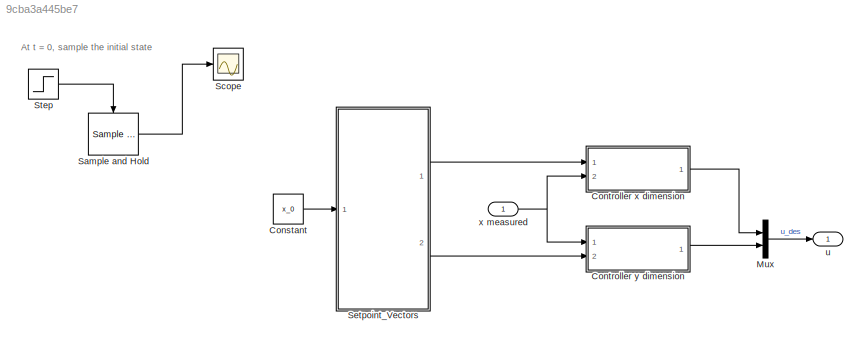
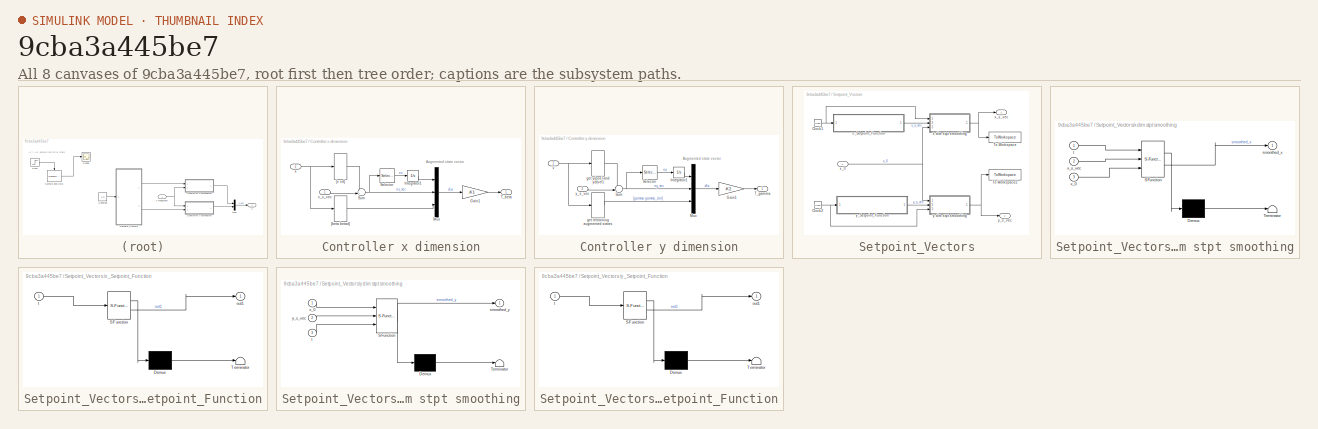
[diagram: thumbnail index - all 8 canvases of the model, root first then tree order]
MODEL slx_9cba3a445be7
KIND model
CONFIG AbsTol = auto
CONFIG EnableMultiTasking = off
CONFIG FixedStep = auto
CONFIG MaxStep = auto
CONFIG MinStep = auto
CONFIG RelTol = 1e-3
CONFIG SampleTimeConstraint = Unconstrained
CONFIG SolverName = VariableStepAuto
CONFIG StartTime = 0.0
CONFIG StopTime = 10.0
BLOCK [Constant] Constant
  Value = x_0
BLOCK [SubSystem] Controller x dimension
  Ports = [2, 1]
  RequestExecContextInheritance = off
BLOCK [Gain] Controller x dimension/Gain1
  Gain = -K1
  Multiplication = Matrix(K*u)
BLOCK [Integrator] Controller x dimension/Integrator1
  Ports = [1, 1]
BLOCK [Mux] Controller x dimension/Mux
  DisplayOption = bar
  Inputs = 3
  Ports = [3, 1]
BLOCK [Selector] Controller x dimension/Selector
  IndexOptions = Index vector (dialog)
  Indices = [1 ]
  InputPortWidth = 2
  OutputSizes = 1
  Ports = [1, 1]
BLOCK [Sum] Controller x dimension/Sum
  Inputs = -+|
  Ports = [2, 1]
BLOCK [Outport] Controller x dimension/T_beta
BLOCK [Selector] Controller x dimension/[beta betad]
  IndexOptions = Index vector (dialog)
  Indices = [3,4]
  InputPortWidth = 8
  OutputSizes = 1
  Ports = [1, 1]
BLOCK [Selector] Controller x dimension/[x xd]
  IndexOptions = Index vector (dialog)
  Indices = [1 2]
  InputPortWidth = 8
  OutputSizes = 1
  Ports = [1, 1]
BLOCK [Inport] Controller x dimension/x
  Port = 2
BLOCK [Inport] Controller x dimension/x_s_vec
BLOCK [SubSystem] Controller y dimension
  NameLocation = top
  Ports = [2, 1]
  RequestExecContextInheritance = off
BLOCK [Gain] Controller y dimension/Gain1
  Gain = -K2
  Multiplication = Matrix(K*u)
BLOCK [Integrator] Controller y dimension/Integrator1
  Ports = [1, 1]
BLOCK [Mux] Controller y dimension/Mux
  DisplayOption = bar
  Inputs = 3
  Ports = [3, 1]
BLOCK [Selector] Controller y dimension/Selector
  IndexOptions = Index vector (dialog)
  Indices = [1 ]
  InputPortWidth = 2
  OutputSizes = 1
  Ports = [1, 1]
BLOCK [Sum] Controller y dimension/Sum
  Inputs = -+|
  Ports = [2, 1]
BLOCK [Outport] Controller y dimension/T_gamma
BLOCK [Selector] Controller y dimension/get remaining augmented states
  IndexOptions = Index vector (dialog)
  Indices = [7 8]
  InputPortWidth = 8
  OutputSizes = 1
  Ports = [1, 1]
BLOCK [Selector] Controller y dimension/get y(pos) and yd(vel)
  IndexOptions = Index vector (dialog)
  Indices = [5 6]
  InputPortWidth = 8
  OutputSizes = 1
  Ports = [1, 1]
BLOCK [Inport] Controller y dimension/x
BLOCK [Inport] Controller y dimension/y_s_vec
  Port = 2
BLOCK [Mux] Mux
  DisplayOption = bar
  Inputs = 2
  Ports = [2, 1]
BLOCK [Reference] Sample and Hold  REF=dspsigops/Sample
and Hold
  Commented = on
  Ports = [1, 1, 0, 1]
  SourceBlock = dspsigops/Sample\nand Hold
  SourceProductBaseCode = DS
  SourceType = Sample and Hold
BLOCK [Scope] Scope
  Floating = off
  NumInputPorts = 1
  Ports = [1]
  ScopeSpecificationString = Simulink.scopes.TimeScopeBlockCfg('CurrentConfiguration', extmgr.ConfigurationSet(extmgr.Configuration('Core','General UI',true),extmgr.Configuration('Core','Source UI',true),extmgr.Configuration('Sources','WiredSimulink',true),extmgr.Configuration('Visuals','Time Domain',true,'SerializedDisplays',{struct('MinYLimReal','-1.00000','MaxYLimReal','1.00000','YLabelReal','','MinYLimMag','0.00000','MaxY...<+1395ch>
BLOCK [SubSystem] Setpoint_Vectors
  Ports = [1, 2]
  RequestExecContextInheritance = off
BLOCK [Clock] Setpoint_Vectors/Clock1
BLOCK [Clock] Setpoint_Vectors/Clock2
BLOCK [ToWorkspace] Setpoint_Vectors/To Workspace
  FixptAsFi = on
  MaxDataPoints = inf
  Ports = [1]
  SampleTime = -1
  VariableName = x_s_vec
BLOCK [ToWorkspace] Setpoint_Vectors/To Workspace2
  FixptAsFi = on
  MaxDataPoints = inf
  Ports = [1]
  SampleTime = -1
  VariableName = y_s_vec
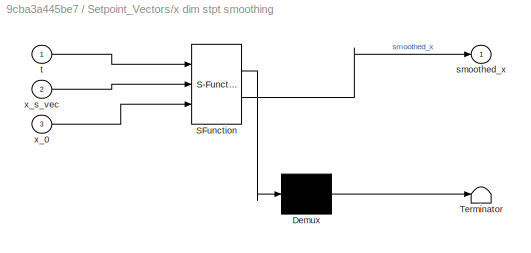
BLOCK [SubSystem] Setpoint_Vectors/x dim stpt smoothing
  ErrorFcn = Stateflow.Translate.translate
  PermitHierarchicalResolution = ExplicitOnly
  Ports = [3, 1]
  RequestExecContextInheritance = off
  SFBlockType = MATLAB Function
  TreatAsAtomicUnit = on
BLOCK [Demux] Setpoint_Vectors/x dim stpt smoothing/ Demux 
  Outputs = 1
  Ports = [1, 1]
BLOCK [S-Function] Setpoint_Vectors/x dim stpt smoothing/ SFunction 
  EnableBusSupport = on
  FunctionName = sf_sfun
  Parameters = Tau
  PortCounts = [3 2]
  Ports = [3, 2]
  SFcnIsStateOwnerBlock = off
  SFunctionDeploymentMode = off
  Tag = Stateflow S-Function 6
BLOCK [Terminator] Setpoint_Vectors/x dim stpt smoothing/ Terminator 
BLOCK [Outport] Setpoint_Vectors/x dim stpt smoothing/smoothed_x
BLOCK [Inport] Setpoint_Vectors/x dim stpt smoothing/t
BLOCK [Inport] Setpoint_Vectors/x dim stpt smoothing/x_0
  Port = 3
BLOCK [Inport] Setpoint_Vectors/x dim stpt smoothing/x_s_vec
  Port = 2
BLOCK [Inport] Setpoint_Vectors/x_0
BLOCK [SubSystem] Setpoint_Vectors/x_Setpoint_Function
  ErrorFcn = Stateflow.Translate.translate
  PermitHierarchicalResolution = ExplicitOnly
  Ports = [1, 1]
  RequestExecContextInheritance = off
  SFBlockType = MATLAB Function
  TreatAsAtomicUnit = on
BLOCK [Demux] Setpoint_Vectors/x_Setpoint_Function/ Demux 
  Outputs = 1
  Ports = [1, 1]
BLOCK [S-Function] Setpoint_Vectors/x_Setpoint_Function/ SFunction 
  EnableBusSupport = on
  FunctionName = sf_sfun
  PortCounts = [1 2]
  Ports = [1, 2]
  SFcnIsStateOwnerBlock = off
  SFunctionDeploymentMode = off
  Tag = Stateflow S-Function 2
BLOCK [Terminator] Setpoint_Vectors/x_Setpoint_Function/ Terminator 
BLOCK [Outport] Setpoint_Vectors/x_Setpoint_Function/out1
BLOCK [Inport] Setpoint_Vectors/x_Setpoint_Function/t
BLOCK [Outport] Setpoint_Vectors/x_s_vec
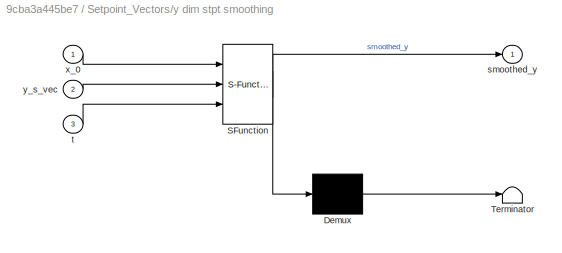
BLOCK [SubSystem] Setpoint_Vectors/y dim stpt smoothing
  ErrorFcn = Stateflow.Translate.translate
  PermitHierarchicalResolution = ExplicitOnly
  Ports = [3, 1]
  RequestExecContextInheritance = off
  SFBlockType = MATLAB Function
  TreatAsAtomicUnit = on
BLOCK [Demux] Setpoint_Vectors/y dim stpt smoothing/ Demux 
  Outputs = 1
  Ports = [1, 1]
BLOCK [S-Function] Setpoint_Vectors/y dim stpt smoothing/ SFunction 
  EnableBusSupport = on
  FunctionName = sf_sfun
  Parameters = Tau
  PortCounts = [3 2]
  Ports = [3, 2]
  SFcnIsStateOwnerBlock = off
  SFunctionDeploymentMode = off
  Tag = Stateflow S-Function 1
BLOCK [Terminator] Setpoint_Vectors/y dim stpt smoothing/ Terminator 
BLOCK [Outport] Setpoint_Vectors/y dim stpt smoothing/smoothed_y
BLOCK [Inport] Setpoint_Vectors/y dim stpt smoothing/t
  Port = 3
BLOCK [Inport] Setpoint_Vectors/y dim stpt smoothing/x_0
BLOCK [Inport] Setpoint_Vectors/y dim stpt smoothing/y_s_vec
  Port = 2
BLOCK [SubSystem] Setpoint_Vectors/y_Setpoint_Function
  ErrorFcn = Stateflow.Translate.translate
  PermitHierarchicalResolution = ExplicitOnly
  Ports = [1, 1]
  RequestExecContextInheritance = off
  SFBlockType = MATLAB Function
  TreatAsAtomicUnit = on
BLOCK [Demux] Setpoint_Vectors/y_Setpoint_Function/ Demux 
  Outputs = 1
  Ports = [1, 1]
BLOCK [S-Function] Setpoint_Vectors/y_Setpoint_Function/ SFunction 
  EnableBusSupport = on
  FunctionName = sf_sfun
  PortCounts = [1 2]
  Ports = [1, 2]
  SFcnIsStateOwnerBlock = off
  SFunctionDeploymentMode = off
  Tag = Stateflow S-Function 3
BLOCK [Terminator] Setpoint_Vectors/y_Setpoint_Function/ Terminator 
BLOCK [Outport] Setpoint_Vectors/y_Setpoint_Function/out1
BLOCK [Inport] Setpoint_Vectors/y_Setpoint_Function/t
BLOCK [Outport] Setpoint_Vectors/y_s_vec
  Port = 2
BLOCK [Step] Step
  Commented = on
  SampleTime = 0
  Time = 0.000001
BLOCK [Outport] u
BLOCK [Inport] x measured
ANNOTATION (root): At t = 0, sample the initial state
ANNOTATION Controller x dimension: Augmented state vector
ANNOTATION Controller y dimension: Augmented state vector
LINE Constant:1 -> Setpoint_Vectors:1
LINE Controller x dimension/Gain1:1 -> Controller x dimension/T_beta:1
LINE Controller x dimension/Integrator1:1 -> Controller x dimension/Mux:1
LINE Controller x dimension/Mux:1 -> Controller x dimension/Gain1:1
LINE Controller x dimension/Selector:1 -> Controller x dimension/Integrator1:1
NET Controller x dimension/Sum:1 -> Controller x dimension/Mux:2, Controller x dimension/Selector:1
LINE Controller x dimension/[beta betad]:1 -> Controller x dimension/Mux:3
LINE Controller x dimension/[x xd]:1 -> Controller x dimension/Sum:1
NET Controller x dimension/x:1 -> Controller x dimension/[beta betad]:1, Controller x dimension/[x xd]:1
LINE Controller x dimension/x_s_vec:1 -> Controller x dimension/Sum:2
LINE Controller x dimension:1 -> Mux:1
LINE Controller y dimension/Gain1:1 -> Controller y dimension/T_gamma:1
LINE Controller y dimension/Integrator1:1 -> Controller y dimension/Mux:1
LINE Controller y dimension/Mux:1 -> Controller y dimension/Gain1:1
LINE Controller y dimension/Selector:1 -> Controller y dimension/Integrator1:1
NET Controller y dimension/Sum:1 -> Controller y dimension/Mux:2, Controller y dimension/Selector:1
LINE Controller y dimension/get remaining augmented states:1 -> Controller y dimension/Mux:3
LINE Controller y dimension/get y(pos) and yd(vel):1 -> Controller y dimension/Sum:1
NET Controller y dimension/x:1 -> Controller y dimension/get remaining augmented states:1, Controller y dimension/get y(pos) and yd(vel):1
LINE Controller y dimension/y_s_vec:1 -> Controller y dimension/Sum:2
LINE Controller y dimension:1 -> Mux:2
LINE Mux:1 -> u:1
LINE Sample and Hold:1 -> Scope:1
NET Setpoint_Vectors/Clock1:1 -> Setpoint_Vectors/x dim stpt smoothing:1, Setpoint_Vectors/x_Setpoint_Function:1
NET Setpoint_Vectors/Clock2:1 -> Setpoint_Vectors/y dim stpt smoothing:3, Setpoint_Vectors/y_Setpoint_Function:1
NET Setpoint_Vectors/x dim stpt smoothing:1 -> Setpoint_Vectors/To Workspace:1, Setpoint_Vectors/x_s_vec:1
NET Setpoint_Vectors/x_0:1 -> Setpoint_Vectors/x dim stpt smoothing:3, Setpoint_Vectors/y dim stpt smoothing:1
LINE Setpoint_Vectors/x_Setpoint_Function:1 -> Setpoint_Vectors/x dim stpt smoothing:2
NET Setpoint_Vectors/y dim stpt smoothing:1 -> Setpoint_Vectors/To Workspace2:1, Setpoint_Vectors/y_s_vec:1
LINE Setpoint_Vectors/y_Setpoint_Function:1 -> Setpoint_Vectors/y dim stpt smoothing:2
LINE Setpoint_Vectors:1 -> Controller x dimension:1
LINE Setpoint_Vectors:2 -> Controller y dimension:2
LINE Step:1 -> Sample and Hold:trigger
NET x measured:1 -> Controller x dimension:2, Controller y dimension:1
note: NET lines group one-source signal fan-out (src -> all destinations, sorted); 1:1 wires keep LINE
CHART Setpoint_Vectors/y dim stpt smoothing states=1 transitions=1
  STATE_LABEL 'eML_blk_kernel()'
  STATE_LABEL 'SCRIPT:\nfunction smoothed_y = fcn(x_0,y_s_vec,t, Tau)\n\nsmoothed_y = y_s_vec*(1-exp(-t/Tau)) + x_0(5:6)*exp(-t/Tau);\n'
CHART Setpoint_Vectors/x_Setpoint_Function states=1 transitions=1
  STATE_LABEL 'eML_blk_kernel()'
  STATE_LABEL 'SCRIPT:\nfunction out1 = x_s_vec(t)\n%#codegen\n\n%    This function was generated by the Symbolic Math Toolbox version 9.1.\n%    05-Mar-2023 13:39:19\n\nt2 = (t.*pi)./2.0;\nt3 = t.*pi.*(3.0./2.0);\nout1 = [cos(t2).*(3.0./4.0e+1)+cos(t3).*(3.0./4.0e+1);pi.*sin(t2).*(-3.0./8.0e+1)-pi.*sin(t3).*(9.0./8.0e+1)];\n'
CHART Setpoint_Vectors/y_Setpoint_Function states=1 transitions=1
  STATE_LABEL 'eML_blk_kernel()'
  STATE_LABEL 'SCRIPT:\nfunction out1 = y_s_vec(t)\n%#codegen\n\n%    This function was generated by the Symbolic Math Toolbox version 9.1.\n%    05-Mar-2023 13:39:19\n\nt2 = (t.*pi)./2.0;\nt3 = t.*pi.*(3.0./2.0);\nout1 = [sin(t2).*(-3.0./4.0e+1)+sin(t3).*(3.0./4.0e+1);pi.*cos(t2).*(-3.0./8.0e+1)+pi.*cos(t3).*(9.0./8.0e+1)];\n'
CHART Setpoint_Vectors/x dim stpt smoothing states=1 transitions=1
  STATE_LABEL 'eML_blk_kernel()'
  STATE_LABEL 'SCRIPT:\nfunction smoothed_x = fcn(t,x_s_vec, Tau, x_0)\n\nsmoothed_x = x_s_vec*(1-exp(-t/Tau)) + x_0(1:2)*exp(-t/Tau);\n'
CHART  states=0 transitions=0
CHART  states=0 transitions=0
CHART  states=0 transitions=0
CHART  states=0 transitions=0
